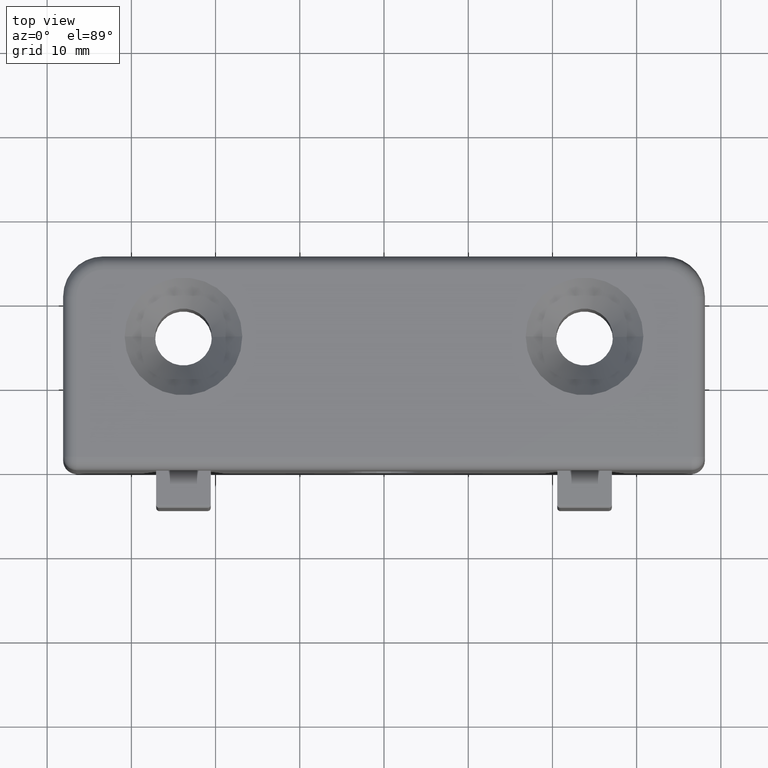
[diagram: clean part render]
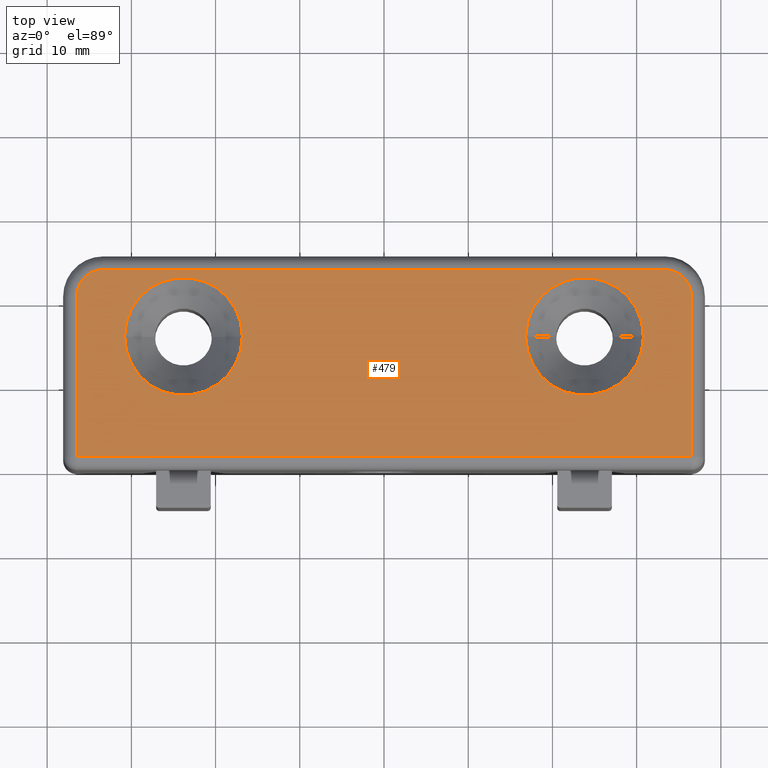
[diagram: same view with one face highlighted and labeled with its STEP entity id]
A machine part, top view. The second image highlights one B-rep face of the part: STEP entity #479.
In plain terms, the highlighted planar face has unit normal (0, 0, 1).
Its self-contained STEP definition (entity closure, byte-faithful):
#281 = AXIS2_PLACEMENT_3D ( 'NONE', #4188, #4177, #4176 ) ;
#284 = AXIS2_PLACEMENT_3D ( 'NONE', #4171, #4160, #4159 ) ;
#479 = ADVANCED_FACE ( 'NONE', ( #1067, #1070, #1075 ), #1337, .T. ) ;
#545 = EDGE_CURVE ( 'NONE', #4979, #5207, #1990, .T. ) ;
#547 = EDGE_CURVE ( 'NONE', #5219, #5186, #1998, .T. ) ;
#548 = EDGE_CURVE ( 'NONE', #5207, #5219, #2000, .T. ) ;
#549 = EDGE_CURVE ( 'NONE', #5222, #4979, #2004, .T. ) ;
#550 = EDGE_CURVE ( 'NONE', #4975, #5174, #2005, .T. ) ;
#551 = EDGE_CURVE ( 'NONE', #5168, #5018, #2006, .T. ) ;
#552 = EDGE_CURVE ( 'NONE', #5186, #5181, #2008, .T. ) ;
#553 = EDGE_CURVE ( 'NONE', #5181, #5222, #1987, .T. ) ;
#1067 = FACE_BOUND ( 'NONE', #5429, .T. ) ;
#1070 = FACE_BOUND ( 'NONE', #5416, .T. ) ;
#1075 = FACE_OUTER_BOUND ( 'NONE', #5420, .T. ) ;
#1335 = DIRECTION ( 'NONE',  ( 1.000000000000000000, 0.0000000000000000000, -0.0000000000000000000 ) ) ;
#1336 = DIRECTION ( 'NONE',  ( 0.0000000000000000000, 0.0000000000000000000, 1.000000000000000000 ) ) ;
#1337 = PLANE ( 'NONE',  #3787 ) ;
#1345 = CARTESIAN_POINT ( 'NONE',  ( 1.437500000000000400, 0.06249999999999999300, 0.5625000000000000000 ) ) ;
#1987 = LINE ( 'NONE', #4000, #2003 ) ;
#1990 = LINE ( 'NONE', #3902, #1995 ) ;
#1995 = VECTOR ( 'NONE', #3949, 39.37007874015748100 ) ;
#1996 = VECTOR ( 'NONE', #3945, 39.37007874015748100 ) ;
#1998 = LINE ( 'NONE', #3952, #1996 ) ;
#2000 = LINE ( 'NONE', #3941, #2001 ) ;
#2001 = VECTOR ( 'NONE', #3942, 39.37007874015748100 ) ;
#2003 = VECTOR ( 'NONE', #4007, 39.37007874015748100 ) ;
#2004 = CIRCLE ( 'NONE', #3810, 0.1249999999999999000 ) ;
#2005 = CIRCLE ( 'NONE', #3811, 0.2749999999999999100 ) ;
#2006 = CIRCLE ( 'NONE', #3808, 0.2749999999999999100 ) ;
#2008 = CIRCLE ( 'NONE', #3812, 0.1249999999999999000 ) ;
#2095 = CARTESIAN_POINT ( 'NONE',  ( -1.312499999999999600, 0.9375000000000000000, 0.5625000000000000000 ) ) ;
#2097 = CARTESIAN_POINT ( 'NONE',  ( -0.6625000000000000900, 0.6250000000000000000, 0.5625000000000001100 ) ) ;
#2110 = CARTESIAN_POINT ( 'NONE',  ( 1.437500000000000200, 0.8124999999999993300, 0.5625000000000000000 ) ) ;
#2115 = CARTESIAN_POINT ( 'NONE',  ( -1.437500000000000200, 0.8124999999999987800, 0.5625000000000000000 ) ) ;
#2150 = CARTESIAN_POINT ( 'NONE',  ( -1.212499999999999900, 0.6250000000000000000, 0.5625000000000001100 ) ) ;
#2153 = CARTESIAN_POINT ( 'NONE',  ( 1.212499999999999900, 0.6250000000000000000, 0.5625000000000001100 ) ) ;
#2226 = CARTESIAN_POINT ( 'NONE',  ( 1.312499999999998900, 0.9374999999999998900, 0.5625000000000000000 ) ) ;
#2227 = CARTESIAN_POINT ( 'NONE',  ( -1.437500000000000400, 0.06250000000000001400, 0.5625000000000000000 ) ) ;
#2259 = CARTESIAN_POINT ( 'NONE',  ( 0.6625000000000000900, 0.6250000000000000000, 0.5625000000000001100 ) ) ;
#2574 = CARTESIAN_POINT ( 'NONE',  ( 1.437500000000000400, 0.06250000000000036100, 0.5625000000000000000 ) ) ;
#3787 = AXIS2_PLACEMENT_3D ( 'NONE', #1345, #1336, #1335 ) ;
#3808 = AXIS2_PLACEMENT_3D ( 'NONE', #3914, #4008, #3920 ) ;
#3810 = AXIS2_PLACEMENT_3D ( 'NONE', #3946, #4016, #4017 ) ;
#3811 = AXIS2_PLACEMENT_3D ( 'NONE', #3953, #4010, #4012 ) ;
#3812 = AXIS2_PLACEMENT_3D ( 'NONE', #3924, #3988, #3926 ) ;
#3902 = CARTESIAN_POINT ( 'NONE',  ( -1.437500000000000400, 0.06250000000000041600, 0.5625000000000000000 ) ) ;
#3914 = CARTESIAN_POINT ( 'NONE',  ( 0.9375000000000000000, 0.6250000000000000000, 0.5625000000000001100 ) ) ;
#3920 = DIRECTION ( 'NONE',  ( 1.000000000000000000, 0.0000000000000000000, 0.0000000000000000000 ) ) ;
#3924 = CARTESIAN_POINT ( 'NONE',  ( 1.312500000000000200, 0.8125000000000000000, 0.5625000000000000000 ) ) ;
#3926 = DIRECTION ( 'NONE',  ( 1.000000000000000000, 0.0000000000000000000, 0.0000000000000000000 ) ) ;
#3941 = CARTESIAN_POINT ( 'NONE',  ( 1.437500000000000000, 0.06250000000000036100, 0.5625000000000000000 ) ) ;
#3942 = DIRECTION ( 'NONE',  ( 1.000000000000000000, 1.224646799147352500E-016, 0.0000000000000000000 ) ) ;
#3945 = DIRECTION ( 'NONE',  ( -3.642463991552359800E-016, 1.000000000000000000, 0.0000000000000000000 ) ) ;
#3946 = CARTESIAN_POINT ( 'NONE',  ( -1.312500000000000200, 0.8125000000000000000, 0.5625000000000000000 ) ) ;
#3949 = DIRECTION ( 'NONE',  ( -3.642463991552359800E-016, -1.000000000000000000, 0.0000000000000000000 ) ) ;
#3952 = CARTESIAN_POINT ( 'NONE',  ( 1.437500000000000200, 0.8124999999999988900, 0.5625000000000000000 ) ) ;
#3953 = CARTESIAN_POINT ( 'NONE',  ( -0.9375000000000000000, 0.6250000000000000000, 0.5625000000000001100 ) ) ;
#3988 = DIRECTION ( 'NONE',  ( 0.0000000000000000000, 0.0000000000000000000, 1.000000000000000000 ) ) ;
#4000 = CARTESIAN_POINT ( 'NONE',  ( -1.312499999999998900, 0.9375000000000000000, 0.5625000000000000000 ) ) ;
#4007 = DIRECTION ( 'NONE',  ( -1.000000000000000000, 0.0000000000000000000, 0.0000000000000000000 ) ) ;
#4008 = DIRECTION ( 'NONE',  ( -0.0000000000000000000, -0.0000000000000000000, 1.000000000000000000 ) ) ;
#4010 = DIRECTION ( 'NONE',  ( -0.0000000000000000000, -0.0000000000000000000, 1.000000000000000000 ) ) ;
#4012 = DIRECTION ( 'NONE',  ( 1.000000000000000000, 0.0000000000000000000, 0.0000000000000000000 ) ) ;
#4016 = DIRECTION ( 'NONE',  ( 0.0000000000000000000, 0.0000000000000000000, 1.000000000000000000 ) ) ;
#4017 = DIRECTION ( 'NONE',  ( 1.000000000000000000, 0.0000000000000000000, 0.0000000000000000000 ) ) ;
#4159 = DIRECTION ( 'NONE',  ( 1.000000000000000000, 0.0000000000000000000, 0.0000000000000000000 ) ) ;
#4160 = DIRECTION ( 'NONE',  ( -0.0000000000000000000, -0.0000000000000000000, 1.000000000000000000 ) ) ;
#4171 = CARTESIAN_POINT ( 'NONE',  ( 0.9375000000000000000, 0.6250000000000000000, 0.5625000000000001100 ) ) ;
#4176 = DIRECTION ( 'NONE',  ( 1.000000000000000000, 0.0000000000000000000, 0.0000000000000000000 ) ) ;
#4177 = DIRECTION ( 'NONE',  ( -0.0000000000000000000, -0.0000000000000000000, 1.000000000000000000 ) ) ;
#4188 = CARTESIAN_POINT ( 'NONE',  ( -0.9375000000000000000, 0.6250000000000000000, 0.5625000000000001100 ) ) ;
#4375 = EDGE_CURVE ( 'NONE', #5174, #4975, #8077, .T. ) ;
#4382 = EDGE_CURVE ( 'NONE', #5018, #5168, #8098, .T. ) ;
#4975 = VERTEX_POINT ( 'NONE', #2097 ) ;
#4979 = VERTEX_POINT ( 'NONE', #2115 ) ;
#5018 = VERTEX_POINT ( 'NONE', #2259 ) ;
#5168 = VERTEX_POINT ( 'NONE', #2153 ) ;
#5174 = VERTEX_POINT ( 'NONE', #2150 ) ;
#5181 = VERTEX_POINT ( 'NONE', #2226 ) ;
#5186 = VERTEX_POINT ( 'NONE', #2110 ) ;
#5207 = VERTEX_POINT ( 'NONE', #2227 ) ;
#5219 = VERTEX_POINT ( 'NONE', #2574 ) ;
#5222 = VERTEX_POINT ( 'NONE', #2095 ) ;
#5416 = EDGE_LOOP ( 'NONE', ( #7546, #7547 ) ) ;
#5420 = EDGE_LOOP ( 'NONE', ( #7548, #7549, #7550, #7551, #7552, #7553 ) ) ;
#5429 = EDGE_LOOP ( 'NONE', ( #7544, #7545 ) ) ;
#7544 = ORIENTED_EDGE ( 'NONE', *, *, #550, .F. ) ;
#7545 = ORIENTED_EDGE ( 'NONE', *, *, #4375, .F. ) ;
#7546 = ORIENTED_EDGE ( 'NONE', *, *, #551, .F. ) ;
#7547 = ORIENTED_EDGE ( 'NONE', *, *, #4382, .F. ) ;
#7548 = ORIENTED_EDGE ( 'NONE', *, *, #549, .T. ) ;
#7549 = ORIENTED_EDGE ( 'NONE', *, *, #545, .T. ) ;
#7550 = ORIENTED_EDGE ( 'NONE', *, *, #548, .T. ) ;
#7551 = ORIENTED_EDGE ( 'NONE', *, *, #547, .T. ) ;
#7552 = ORIENTED_EDGE ( 'NONE', *, *, #552, .T. ) ;
#7553 = ORIENTED_EDGE ( 'NONE', *, *, #553, .T. ) ;
#8077 = CIRCLE ( 'NONE', #281, 0.2749999999999999100 ) ;
#8098 = CIRCLE ( 'NONE', #284, 0.2749999999999999100 ) ;